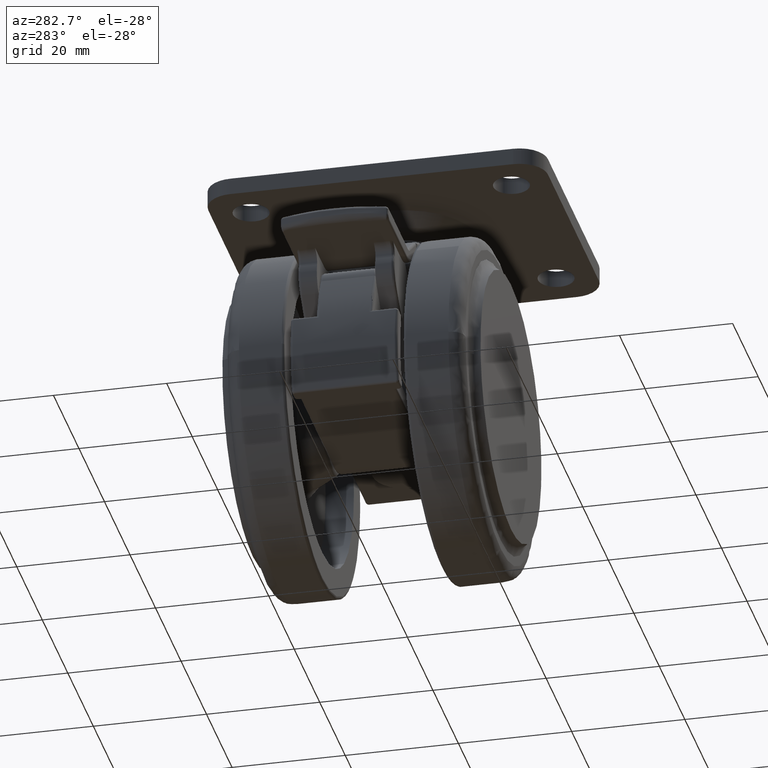
[diagram: clean part render]
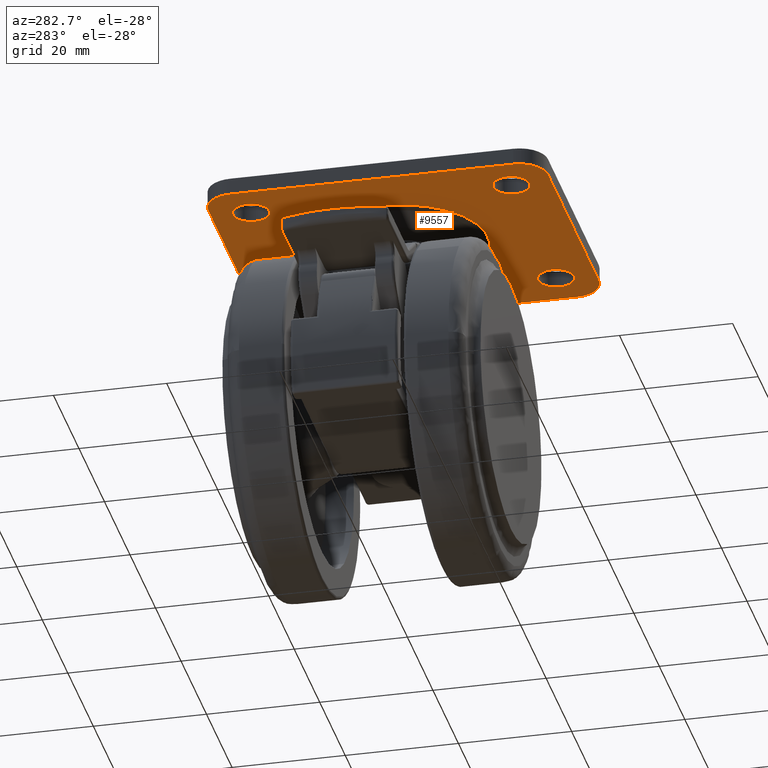
[diagram: same view with one face highlighted and labeled with its STEP entity id]
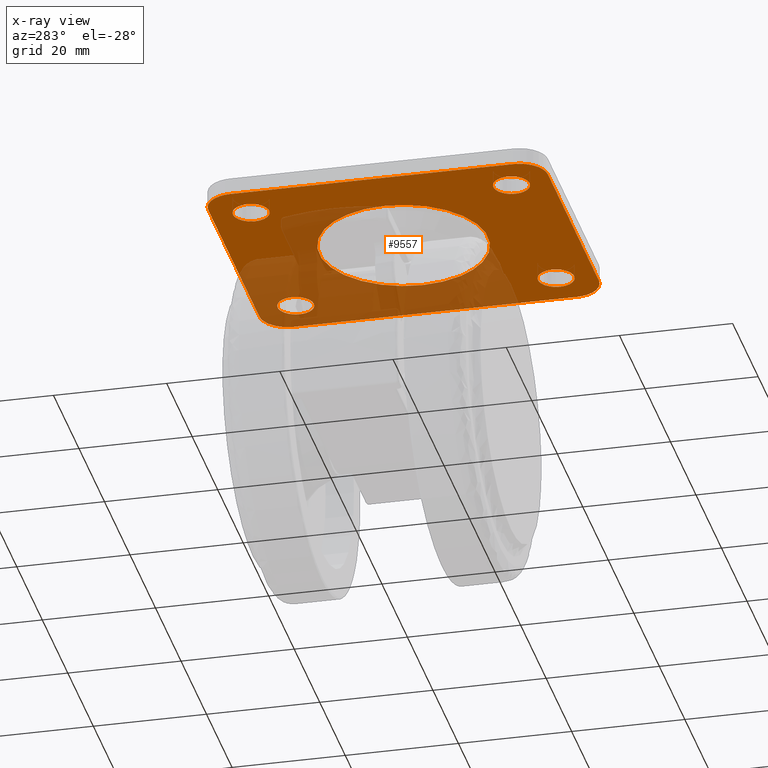
[diagram: x-ray of the same camera — body ghosted, the highlighted face saturated]
A machine part, auxiliary view. The second image highlights one B-rep face of the part: STEP entity #9557.
The next image is the same camera in x-ray: the body ghosted, the highlighted face saturated — about 40% of this face is hidden behind the body in this view.
In plain terms, the highlighted face is a freeform B-spline surface patch.
Its self-contained STEP definition (entity closure, byte-faithful):
#8462=CARTESIAN_POINT('',(-0.500001340175659,26.199999999999719,43.0));
#8463=VERTEX_POINT('',#8462);
#8464=CARTESIAN_POINT('',(-2.661888826704787,25.359287781744779,42.999999999995183));
#8465=VERTEX_POINT('',#8464);
#8466=CARTESIAN_POINT('',(-0.500001340175659,26.199999999999719,43.0));
#8467=CARTESIAN_POINT('',(-0.722533069907792,26.200033067944180,42.999999999999623));
#8468=CARTESIAN_POINT('',(-1.167576271785918,26.153393537469920,42.999999999998273));
#8469=CARTESIAN_POINT('',(-1.924491894249554,25.908533104733198,42.999999999997037));
#8470=CARTESIAN_POINT('',(-2.406801151911527,25.593335290567300,42.999999999995637));
#8471=CARTESIAN_POINT('',(-2.661888826704787,25.359287781744779,42.999999999995183));
#8472=B_SPLINE_CURVE_WITH_KNOTS('',3,(#8466,#8467,#8468,#8469,#8470,#8471),.UNSPECIFIED.,.F.,.U.,(4,1,1,4),(0.000000021626297,0.667592869155720,1.335174790091493,2.373659765460099),.UNSPECIFIED.);
#8473=EDGE_CURVE('',#8463,#8465,#8472,.T.);
#8475=CARTESIAN_POINT('',(2.700000000000000,23.0,43.0));
#8476=VERTEX_POINT('',#8475);
#8477=CARTESIAN_POINT('',(2.700000000000000,23.0,43.0));
#8478=CARTESIAN_POINT('',(2.700197356448129,23.340367719141629,42.999999999999950));
#8479=CARTESIAN_POINT('',(2.609305911978388,23.903099948025261,43.000000000000057));
#8480=CARTESIAN_POINT('',(2.290248609210453,24.611065494537080,43.000000000000007));
#8481=CARTESIAN_POINT('',(1.943499500325946,25.090745099446760,43.000000000000007));
#8482=CARTESIAN_POINT('',(1.548936924777993,25.475731308557819,43.000000000000007));
#8483=CARTESIAN_POINT('',(1.065581307982910,25.816205530728109,42.999999999999872));
#8484=CARTESIAN_POINT('',(0.376968144441672,26.116424184237172,43.000000000000327));
#8485=CARTESIAN_POINT('',(-0.185830364732169,26.200139401411690,42.999999999999567));
#8486=CARTESIAN_POINT('',(-0.500001340175659,26.199999999999719,43.0));
#8487=B_SPLINE_CURVE_WITH_KNOTS('',3,(#8477,#8478,#8479,#8480,#8481,#8482,#8483,#8484,#8485,#8486),.UNSPECIFIED.,.F.,.U.,(4,1,1,1,1,1,1,4),(0.000000105261810,1.021024323928746,1.688626347366894,2.316944332592393,2.788169922590063,3.337955434306164,4.084099322884661,5.026580540558659),.UNSPECIFIED.);
#8488=EDGE_CURVE('',#8476,#8463,#8487,.T.);
#8490=CARTESIAN_POINT('',(1.661888826704784,20.640712218255221,42.999999999995183));
#8491=VERTEX_POINT('',#8490);
#8492=CARTESIAN_POINT('',(1.661888826704784,20.640712218255221,42.999999999995183));
#8493=CARTESIAN_POINT('',(1.906523321231345,20.864628718463681,42.999999999995602));
#8494=CARTESIAN_POINT('',(2.229021226320788,21.269214182929371,42.999999999996447));
#8495=CARTESIAN_POINT('',(2.602215544455720,22.074417904331781,42.999999999998202));
#8496=CARTESIAN_POINT('',(2.700264501150707,22.626886415639060,42.999999999999297));
#8497=CARTESIAN_POINT('',(2.700000000000000,23.0,43.0));
#8498=B_SPLINE_CURVE_WITH_KNOTS('',3,(#8492,#8493,#8494,#8495,#8496,#8497),.UNSPECIFIED.,.F.,.U.,(4,1,1,4),(0.000000029411680,0.994845205847932,1.533713299763997,2.652919233643403),.UNSPECIFIED.);
#8499=EDGE_CURVE('',#8491,#8476,#8498,.T.);
#8571=CARTESIAN_POINT('',(-3.700000000000000,23.0,43.0));
#8572=VERTEX_POINT('',#8571);
#8573=CARTESIAN_POINT('',(-2.661888826704787,25.359287781744779,42.999999999995183));
#8574=CARTESIAN_POINT('',(-2.916723574239193,25.126051167002139,42.999999999995730));
#8575=CARTESIAN_POINT('',(-3.297548806396222,24.641952663394822,42.999999999996653));
#8576=CARTESIAN_POINT('',(-3.629777401124580,23.815181675624071,42.999999999998238));
#8577=CARTESIAN_POINT('',(-3.700066776113350,23.276350977815731,42.999999999999467));
#8578=CARTESIAN_POINT('',(-3.700000000000000,23.0,43.0));
#8579=B_SPLINE_CURVE_WITH_KNOTS('',3,(#8573,#8574,#8575,#8576,#8577,#8578),.UNSPECIFIED.,.F.,.U.,(4,1,1,4),(0.000000029412016,1.036306034867509,1.823877475353224,2.652919233643401),.UNSPECIFIED.);
#8580=EDGE_CURVE('',#8465,#8572,#8579,.T.);
#8618=CARTESIAN_POINT('',(-0.499998659824357,19.800000000000281,43.0));
#8619=VERTEX_POINT('',#8618);
#8620=CARTESIAN_POINT('',(-0.499998659824357,19.800000000000281,43.0));
#8621=CARTESIAN_POINT('',(-0.153810431076212,19.799812001698619,42.999999999999183));
#8622=CARTESIAN_POINT('',(0.377644553538552,19.887122866157430,42.999999999998103));
#8623=CARTESIAN_POINT('',(1.105564214175410,20.204833182617332,42.999999999996348));
#8624=CARTESIAN_POINT('',(1.470517544744739,20.465265478562479,42.999999999995687));
#8625=CARTESIAN_POINT('',(1.661888826704784,20.640712218255221,42.999999999995183));
#8626=B_SPLINE_CURVE_WITH_KNOTS('',3,(#8620,#8621,#8622,#8623,#8624,#8625),.UNSPECIFIED.,.F.,.U.,(4,1,1,4),(0.000000021626192,1.038484996956960,1.594799769515094,2.373659765460117),.UNSPECIFIED.);
#8627=EDGE_CURVE('',#8619,#8491,#8626,.T.);
#8629=CARTESIAN_POINT('',(-3.700000000000000,23.0,43.0));
#8630=CARTESIAN_POINT('',(-3.700373810515562,22.607235197999600,42.999999999999972));
#8631=CARTESIAN_POINT('',(-3.585231545821074,21.992301524540910,42.999999999999972));
#8632=CARTESIAN_POINT('',(-3.177911155453492,21.195361434929769,43.000000000000107));
#8633=CARTESIAN_POINT('',(-2.724275409945585,20.662868661291601,42.999999999999829));
#8634=CARTESIAN_POINT('',(-2.125154073519164,20.212819432662371,42.999999999999808));
#8635=CARTESIAN_POINT('',(-1.403144728492787,19.887462411572649,43.000000000000931));
#8636=CARTESIAN_POINT('',(-0.814173136209256,19.799856556608692,42.999999999998842));
#8637=CARTESIAN_POINT('',(-0.499998659824357,19.800000000000281,43.0));
#8638=B_SPLINE_CURVE_WITH_KNOTS('',3,(#8629,#8630,#8631,#8632,#8633,#8634,#8635,#8636,#8637),.UNSPECIFIED.,.F.,.U.,(4,1,1,1,1,1,4),(0.000000105269612,1.178103383195594,1.845701243827852,2.670343052054529,3.259419716830502,4.084099322886392,5.026580540558665),.UNSPECIFIED.);
#8639=EDGE_CURVE('',#8572,#8619,#8638,.T.);
#8662=CARTESIAN_POINT('',(34.499998659824342,26.199999999999719,43.0));
#8663=VERTEX_POINT('',#8662);
#8664=CARTESIAN_POINT('',(32.338111173295218,25.359287781744779,42.999999999995183));
#8665=VERTEX_POINT('',#8664);
#8666=CARTESIAN_POINT('',(34.499998659824342,26.199999999999719,43.0));
#8667=CARTESIAN_POINT('',(34.265107110792833,26.200028838467819,42.999999999999552));
#8668=CARTESIAN_POINT('',(33.758227136470140,26.144000049172281,42.999999999998217));
#8669=CARTESIAN_POINT('',(33.008316060275241,25.872181432447132,42.999999999996668));
#8670=CARTESIAN_POINT('',(32.547695031265278,25.551461849221280,42.999999999995687));
#8671=CARTESIAN_POINT('',(32.338111173295218,25.359287781744779,42.999999999995183));
#8672=B_SPLINE_CURVE_WITH_KNOTS('',3,(#8666,#8667,#8668,#8669,#8670,#8671),.UNSPECIFIED.,.F.,.U.,(4,1,1,4),(0.000000021622943,0.704682653661215,1.520624069223128,2.373659765460106),.UNSPECIFIED.);
#8673=EDGE_CURVE('',#8663,#8665,#8672,.T.);
#8675=CARTESIAN_POINT('',(37.700000000000003,23.0,43.0));
#8676=VERTEX_POINT('',#8675);
#8677=CARTESIAN_POINT('',(37.700000000000003,23.0,43.0));
#8678=CARTESIAN_POINT('',(37.700174681094801,23.327270574867981,42.999999999999993));
#8679=CARTESIAN_POINT('',(37.616910445125022,23.863849698003332,43.000000000000078));
#8680=CARTESIAN_POINT('',(37.331851490258160,24.528760849853740,43.0));
#8681=CARTESIAN_POINT('',(36.981497532674773,25.053131149943528,43.0));
#8682=CARTESIAN_POINT('',(36.553123699716053,25.481490507704180,42.999999999999929));
#8683=CARTESIAN_POINT('',(36.006917247649390,25.846469643907501,43.000000000000192));
#8684=CARTESIAN_POINT('',(35.337706455617102,26.123681607602990,42.999999999999652));
#8685=CARTESIAN_POINT('',(34.801075516358992,26.200117063722040,43.000000000000412));
#8686=CARTESIAN_POINT('',(34.499998659824342,26.199999999999719,43.0));
#8687=B_SPLINE_CURVE_WITH_KNOTS('',3,(#8677,#8678,#8679,#8680,#8681,#8682,#8683,#8684,#8685,#8686),.UNSPECIFIED.,.F.,.U.,(4,1,1,1,1,1,1,4),(0.000000105263994,0.981746555929980,1.610086518815435,2.159880174806929,2.866701118079796,3.416494656554383,4.123376205630324,5.026580540558654),.UNSPECIFIED.);
#8688=EDGE_CURVE('',#8676,#8663,#8687,.T.);
#8690=CARTESIAN_POINT('',(36.661888826704782,20.640712218255221,42.999999999995168));
#8691=VERTEX_POINT('',#8690);
#8692=CARTESIAN_POINT('',(36.661888826704782,20.640712218255221,42.999999999995168));
#8693=CARTESIAN_POINT('',(36.814711619669502,20.780716513130422,42.999999999995552));
#8694=CARTESIAN_POINT('',(37.102285828255233,21.100895414534051,42.999999999995929));
#8695=CARTESIAN_POINT('',(37.433004519852062,21.663838084560581,42.999999999997428));
#8696=CARTESIAN_POINT('',(37.649562753699321,22.309165097119038,42.999999999998472));
#8697=CARTESIAN_POINT('',(37.700044650386587,22.765102761605281,42.999999999999602));
#8698=CARTESIAN_POINT('',(37.700000000000003,23.0,43.0));
#8699=B_SPLINE_CURVE_WITH_KNOTS('',3,(#8692,#8693,#8694,#8695,#8696,#8697,#8698),.UNSPECIFIED.,.F.,.U.,(4,1,1,1,4),(0.000000029413702,0.621777047856639,1.285023365529485,1.948236649971734,2.652919233643385),.UNSPECIFIED.);
#8700=EDGE_CURVE('',#8691,#8676,#8699,.T.);
#8772=CARTESIAN_POINT('',(31.300000000000001,23.0,43.0));
#8773=VERTEX_POINT('',#8772);
#8774=CARTESIAN_POINT('',(32.338111173295218,25.359287781744779,42.999999999995183));
#8775=CARTESIAN_POINT('',(32.144512812695140,25.181967812006100,42.999999999995467));
#8776=CARTESIAN_POINT('',(31.837492360540210,24.821700326433930,42.999999999996469));
#8777=CARTESIAN_POINT('',(31.545842434179661,24.269245985904551,42.999999999997243));
#8778=CARTESIAN_POINT('',(31.351316997211359,23.677013947597938,42.999999999998899));
#8779=CARTESIAN_POINT('',(31.299932349023241,23.262535417141301,42.999999999999460));
#8780=CARTESIAN_POINT('',(31.300000000000001,23.0,43.0));
#8781=B_SPLINE_CURVE_WITH_KNOTS('',3,(#8774,#8775,#8776,#8777,#8778,#8779,#8780),.UNSPECIFIED.,.F.,.U.,(4,1,1,1,4),(0.000000029411336,0.787586766740299,1.409351723500738,1.865332496332826,2.652919233643404),.UNSPECIFIED.);
#8782=EDGE_CURVE('',#8665,#8773,#8781,.T.);
#8822=CARTESIAN_POINT('',(34.500001340175643,19.800000000000281,43.0));
#8823=VERTEX_POINT('',#8822);
#8824=CARTESIAN_POINT('',(34.500001340175643,19.800000000000281,43.0));
#8825=CARTESIAN_POINT('',(34.821446395324983,19.799856569587799,42.999999999999247));
#8826=CARTESIAN_POINT('',(35.390061772673590,19.886410847982990,42.999999999998089));
#8827=CARTESIAN_POINT('',(36.118235826269363,20.209265713208239,42.999999999996291));
#8828=CARTESIAN_POINT('',(36.497843467256267,20.490348981523962,42.999999999995609));
#8829=CARTESIAN_POINT('',(36.661888826704782,20.640712218255221,42.999999999995168));
#8830=B_SPLINE_CURVE_WITH_KNOTS('',3,(#8824,#8825,#8826,#8827,#8828,#8829),.UNSPECIFIED.,.F.,.U.,(4,1,1,4),(0.000000021619543,0.964308508286991,1.706066917920045,2.373659765460116),.UNSPECIFIED.);
#8831=EDGE_CURVE('',#8823,#8691,#8830,.T.);
#8833=CARTESIAN_POINT('',(31.300000000000001,23.0,43.0));
#8834=CARTESIAN_POINT('',(31.299924656225521,22.725106775049142,43.000000000000057));
#8835=CARTESIAN_POINT('',(31.364496789192231,22.227723796876120,42.999999999999901));
#8836=CARTESIAN_POINT('',(31.630179200490218,21.526137427277490,42.999999999999993));
#8837=CARTESIAN_POINT('',(31.978401098620381,20.998013509568342,43.000000000000441));
#8838=CARTESIAN_POINT('',(32.409269093860509,20.556526119896240,42.999999999999247));
#8839=CARTESIAN_POINT('',(32.963507469311750,20.155681119347310,43.000000000000277));
#8840=CARTESIAN_POINT('',(33.688414995282862,19.865891661054668,43.000000000000362));
#8841=CARTESIAN_POINT('',(34.251293657695037,19.799958270351489,42.999999999999517));
#8842=CARTESIAN_POINT('',(34.500001340175643,19.800000000000281,43.0));
#8843=B_SPLINE_CURVE_WITH_KNOTS('',3,(#8833,#8834,#8835,#8836,#8837,#8838,#8839,#8840,#8841,#8842),.UNSPECIFIED.,.F.,.U.,(4,1,1,1,1,1,1,4),(0.000000105262140,0.824668159904866,1.492269151751538,2.238411792356550,2.709635221843404,3.337955434305574,4.280451145650599,5.026580540558739),.UNSPECIFIED.);
#8844=EDGE_CURVE('',#8773,#8823,#8843,.T.);
#8867=CARTESIAN_POINT('',(34.499998659824342,-19.800000000000281,43.0));
#8868=VERTEX_POINT('',#8867);
#8869=CARTESIAN_POINT('',(32.338111173295218,-20.640712218255221,42.999999999995183));
#8870=VERTEX_POINT('',#8869);
#8871=CARTESIAN_POINT('',(34.499998659824342,-19.800000000000281,43.0));
#8872=CARTESIAN_POINT('',(34.153806508548563,-19.799778006963560,42.999999999999140));
#8873=CARTESIAN_POINT('',(33.597633166544050,-19.891204524248302,42.999999999998053));
#8874=CARTESIAN_POINT('',(32.872668064863518,-20.217654967760659,42.999999999996341));
#8875=CARTESIAN_POINT('',(32.511265846630543,-20.481985785661841,42.999999999995552));
#8876=CARTESIAN_POINT('',(32.338111173295218,-20.640712218255221,42.999999999995183));
#8877=B_SPLINE_CURVE_WITH_KNOTS('',3,(#8871,#8872,#8873,#8874,#8875,#8876),.UNSPECIFIED.,.F.,.U.,(4,1,1,4),(0.000000021622555,1.038484996956013,1.668977133393041,2.373659765460105),.UNSPECIFIED.);
#8878=EDGE_CURVE('',#8868,#8870,#8877,.T.);
#8880=CARTESIAN_POINT('',(37.700000000000003,-23.0,43.0));
#8881=VERTEX_POINT('',#8880);
#8882=CARTESIAN_POINT('',(37.700000000000003,-23.0,43.0));
#8883=CARTESIAN_POINT('',(37.700007469216622,-22.816743092330459,43.000000000000050));
#8884=CARTESIAN_POINT('',(37.665073735486693,-22.410951493359640,42.999999999999901));
#8885=CARTESIAN_POINT('',(37.503610961406523,-21.841127415892831,43.000000000000220));
#8886=CARTESIAN_POINT('',(37.214151917877572,-21.266067615672089,42.999999999999687));
#8887=CARTESIAN_POINT('',(36.857653413113439,-20.809244221646541,43.000000000000092));
#8888=CARTESIAN_POINT('',(36.434812472882733,-20.435408688248490,42.999999999999950));
#8889=CARTESIAN_POINT('',(35.970688653497291,-20.137469574467101,43.000000000000107));
#8890=CARTESIAN_POINT('',(35.324616615343921,-19.874445738333328,42.999999999999822));
#8891=CARTESIAN_POINT('',(34.801074171848363,-19.799893723314909,43.000000000000277));
#8892=CARTESIAN_POINT('',(34.499998659824342,-19.800000000000281,43.0));
#8893=B_SPLINE_CURVE_WITH_KNOTS('',3,(#8882,#8883,#8884,#8885,#8886,#8887,#8888,#8889,#8890,#8891,#8892),.UNSPECIFIED.,.F.,.U.,(4,1,1,1,1,1,1,1,4),(0.000000105262246,0.549776105364639,1.217374445313705,1.767162747452991,2.474052021632666,2.945238975652895,3.455771537998703,4.123376205629437,5.026580540558741),.UNSPECIFIED.);
#8894=EDGE_CURVE('',#8881,#8868,#8893,.T.);
#8896=CARTESIAN_POINT('',(36.661888826704782,-25.359287781744779,42.999999999995183));
#8897=VERTEX_POINT('',#8896);
#8898=CARTESIAN_POINT('',(36.661888826704782,-25.359287781744779,42.999999999995183));
#8899=CARTESIAN_POINT('',(36.947339537477383,-25.098086781930402,42.999999999995737));
#8900=CARTESIAN_POINT('',(37.345254889842117,-24.571405456469929,42.999999999996703));
#8901=CARTESIAN_POINT('',(37.645005667278681,-23.732292196569581,42.999999999998572));
#8902=CARTESIAN_POINT('',(37.700029555040722,-23.234891831302441,42.999999999999503));
#8903=CARTESIAN_POINT('',(37.700000000000003,-23.0,43.0));
#8904=B_SPLINE_CURVE_WITH_KNOTS('',3,(#8898,#8899,#8900,#8901,#8902,#8903),.UNSPECIFIED.,.F.,.U.,(4,1,1,4),(0.000000029411118,1.160665530532419,1.948236649971215,2.652919233643405),.UNSPECIFIED.);
#8905=EDGE_CURVE('',#8897,#8881,#8904,.T.);
#8979=CARTESIAN_POINT('',(31.300000000000001,-23.0,43.0));
#8980=VERTEX_POINT('',#8979);
#8981=CARTESIAN_POINT('',(32.338111173295218,-20.640712218255221,42.999999999995183));
#8982=CARTESIAN_POINT('',(32.134316410508653,-20.827358984639542,42.999999999995502));
#8983=CARTESIAN_POINT('',(31.775540371085519,-21.253870036107120,42.999999999996540));
#8984=CARTESIAN_POINT('',(31.395390135845311,-22.060524515075429,42.999999999998053));
#8985=CARTESIAN_POINT('',(31.299813236123939,-22.668363145625911,42.999999999999403));
#8986=CARTESIAN_POINT('',(31.300000000000001,-23.0,43.0));
#8987=B_SPLINE_CURVE_WITH_KNOTS('',3,(#8981,#8982,#8983,#8984,#8985,#8986),.UNSPECIFIED.,.F.,.U.,(4,1,1,4),(0.000000029411253,0.829041787730949,1.658074057229556,2.652919233643404),.UNSPECIFIED.);
#8988=EDGE_CURVE('',#8870,#8980,#8987,.T.);
#9027=CARTESIAN_POINT('',(34.500001340175643,-26.199999999999719,43.0));
#9028=VERTEX_POINT('',#9027);
#9029=CARTESIAN_POINT('',(34.500001340175643,-26.199999999999719,43.0));
#9030=CARTESIAN_POINT('',(34.821453077222763,-26.200158614546108,42.999999999999261));
#9031=CARTESIAN_POINT('',(35.377685423490647,-26.115443088466151,42.999999999998082));
#9032=CARTESIAN_POINT('',(36.107259101959137,-25.797046169870828,42.999999999996326));
#9033=CARTESIAN_POINT('',(36.488733341685737,-25.518011578936559,42.999999999995602));
#9034=CARTESIAN_POINT('',(36.661888826704782,-25.359287781744779,42.999999999995183));
#9035=B_SPLINE_CURVE_WITH_KNOTS('',3,(#9029,#9030,#9031,#9032,#9033,#9034),.UNSPECIFIED.,.F.,.U.,(4,1,1,4),(0.000000021624341,0.964308508289416,1.668977133393245,2.373659765460099),.UNSPECIFIED.);
#9036=EDGE_CURVE('',#9028,#8897,#9035,.T.);
#9038=CARTESIAN_POINT('',(31.300000000000001,-23.0,43.0));
#9039=CARTESIAN_POINT('',(31.299851519173249,-23.327262671226460,43.000000000000092));
#9040=CARTESIAN_POINT('',(31.387112793392081,-23.890041338117928,42.999999999999673));
#9041=CARTESIAN_POINT('',(31.680707743015400,-24.552233077105360,43.000000000000277));
#9042=CARTESIAN_POINT('',(32.059401117759890,-25.104240726421398,42.999999999999893));
#9043=CARTESIAN_POINT('',(32.572517810941271,-25.598904044626959,43.000000000000348));
#9044=CARTESIAN_POINT('',(33.206382225714933,-25.952790285184509,42.999999999999538));
#9045=CARTESIAN_POINT('',(33.858616394594982,-26.154963939366059,43.000000000000753));
#9046=CARTESIAN_POINT('',(34.264383505138959,-26.200043890147860,42.999999999999332));
#9047=CARTESIAN_POINT('',(34.500001340175643,-26.199999999999719,43.0));
#9048=B_SPLINE_CURVE_WITH_KNOTS('',3,(#9038,#9039,#9040,#9041,#9042,#9043,#9044,#9045,#9046,#9047),.UNSPECIFIED.,.F.,.U.,(4,1,1,1,1,1,1,4),(0.000000105272258,0.981746555935269,1.688626347372908,2.159880174809379,2.984529595476587,3.809206057163466,4.319733558449865,5.026580540558647),.UNSPECIFIED.);
#9049=EDGE_CURVE('',#8980,#9028,#9048,.T.);
#9072=CARTESIAN_POINT('',(-0.500001340175663,-19.800000000000281,43.0));
#9073=VERTEX_POINT('',#9072);
#9074=CARTESIAN_POINT('',(-2.661888826704788,-20.640712218255221,42.999999999995183));
#9075=VERTEX_POINT('',#9074);
#9076=CARTESIAN_POINT('',(-0.500001340175663,-19.800000000000281,43.0));
#9077=CARTESIAN_POINT('',(-0.883308918217504,-19.799687892043700,42.999999999999162));
#9078=CARTESIAN_POINT('',(-1.389957325541662,-19.892139541564259,42.999999999997947));
#9079=CARTESIAN_POINT('',(-2.114501572301515,-20.213409996619909,42.999999999996483));
#9080=CARTESIAN_POINT('',(-2.452308765950628,-20.448525745053161,42.999999999995673));
#9081=CARTESIAN_POINT('',(-2.661888826704788,-20.640712218255221,42.999999999995183));
#9082=B_SPLINE_CURVE_WITH_KNOTS('',3,(#9076,#9077,#9078,#9079,#9080,#9081),.UNSPECIFIED.,.F.,.U.,(4,1,1,4),(0.000000021624632,1.149755949486658,1.520624069222937,2.373659765460111),.UNSPECIFIED.);
#9083=EDGE_CURVE('',#9073,#9075,#9082,.T.);
#9085=CARTESIAN_POINT('',(2.700000000000000,-23.0,43.0));
#9086=VERTEX_POINT('',#9085);
#9087=CARTESIAN_POINT('',(2.700000000000000,-23.0,43.0));
#9088=CARTESIAN_POINT('',(2.700034940487767,-22.764384374916531,43.000000000000028));
#9089=CARTESIAN_POINT('',(2.644825490570664,-22.266979419667031,42.999999999999943));
#9090=CARTESIAN_POINT('',(2.369477023330763,-21.496999669647341,42.999999999999872));
#9091=CARTESIAN_POINT('',(1.912279666574547,-20.847913656477491,43.000000000000341));
#9092=CARTESIAN_POINT('',(1.354453225150402,-20.366864819230599,42.999999999999673));
#9093=CARTESIAN_POINT('',(0.862352668344885,-20.088099050410559,43.000000000000362));
#9094=CARTESIAN_POINT('',(0.246065598840696,-19.863291810031651,42.999999999999858));
#9095=CARTESIAN_POINT('',(-0.198918450568436,-19.799884823008369,42.999999999999993));
#9096=CARTESIAN_POINT('',(-0.500001340175663,-19.800000000000281,43.0));
#9097=B_SPLINE_CURVE_WITH_KNOTS('',3,(#9087,#9088,#9089,#9090,#9091,#9092,#9093,#9094,#9095,#9096),.UNSPECIFIED.,.F.,.U.,(4,1,1,1,1,1,1,4),(0.000000105262629,0.706848131072575,1.492269151753440,2.434769338651153,3.063060452475773,3.691393158362588,4.123376205629533,5.026580540558753),.UNSPECIFIED.);
#9098=EDGE_CURVE('',#9086,#9073,#9097,.T.);
#9100=CARTESIAN_POINT('',(1.661888826704784,-25.359287781744779,42.999999999995168));
#9101=VERTEX_POINT('',#9100);
#9102=CARTESIAN_POINT('',(1.661888826704784,-25.359287781744779,42.999999999995168));
#9103=CARTESIAN_POINT('',(1.947402914952974,-25.098132289165669,42.999999999995687));
#9104=CARTESIAN_POINT('',(2.345186395387946,-24.571360682648749,42.999999999996831));
#9105=CARTESIAN_POINT('',(2.645021360189349,-23.732301599672599,42.999999999998387));
#9106=CARTESIAN_POINT('',(2.700029763021584,-23.234892534368502,42.999999999999652));
#9107=CARTESIAN_POINT('',(2.700000000000000,-23.0,43.0));
#9108=B_SPLINE_CURVE_WITH_KNOTS('',3,(#9102,#9103,#9104,#9105,#9106,#9107),.UNSPECIFIED.,.F.,.U.,(4,1,1,4),(0.000000029409994,1.160665530532085,1.948236649971108,2.652919233643404),.UNSPECIFIED.);
#9109=EDGE_CURVE('',#9101,#9086,#9108,.T.);
#9182=CARTESIAN_POINT('',(-3.700000000000000,-23.0,43.0));
#9183=VERTEX_POINT('',#9182);
#9184=CARTESIAN_POINT('',(-2.661888826704788,-20.640712218255221,42.999999999995183));
#9185=CARTESIAN_POINT('',(-2.906495955898452,-20.864650389690581,42.999999999995630));
#9186=CARTESIAN_POINT('',(-3.229052566319894,-21.269193359599161,42.999999999996483));
#9187=CARTESIAN_POINT('',(-3.602167931361286,-22.074432933278342,42.999999999998082));
#9188=CARTESIAN_POINT('',(-3.700312438851188,-22.626876816525250,42.999999999999240));
#9189=CARTESIAN_POINT('',(-3.700000000000000,-23.0,43.0));
#9190=B_SPLINE_CURVE_WITH_KNOTS('',3,(#9184,#9185,#9186,#9187,#9188,#9189),.UNSPECIFIED.,.F.,.U.,(4,1,1,4),(0.000000029412929,0.994845205848957,1.533713299764545,2.652919233643402),.UNSPECIFIED.);
#9191=EDGE_CURVE('',#9075,#9183,#9190,.T.);
#9231=CARTESIAN_POINT('',(-0.499998659824357,-26.199999999999719,43.0));
#9232=VERTEX_POINT('',#9231);
#9233=CARTESIAN_POINT('',(-0.499998659824357,-26.199999999999719,43.0));
#9234=CARTESIAN_POINT('',(-0.240374457368487,-26.200056943943149,42.999999999999467));
#9235=CARTESIAN_POINT('',(0.241738843167986,-26.140999660096270,42.999999999998302));
#9236=CARTESIAN_POINT('',(0.989678559806816,-25.869945266135499,42.999999999996710));
#9237=CARTESIAN_POINT('',(1.434097022711624,-25.568199844269341,42.999999999995623));
#9238=CARTESIAN_POINT('',(1.661888826704784,-25.359287781744779,42.999999999995168));
#9239=B_SPLINE_CURVE_WITH_KNOTS('',3,(#9233,#9234,#9235,#9236,#9237,#9238),.UNSPECIFIED.,.F.,.U.,(4,1,1,4),(0.000000021625455,0.778860017544202,1.446447034461508,2.373659765460132),.UNSPECIFIED.);
#9240=EDGE_CURVE('',#9232,#9101,#9239,.T.);
#9242=CARTESIAN_POINT('',(-3.700000000000000,-23.0,43.0));
#9243=CARTESIAN_POINT('',(-3.700020802404104,-23.235610131797891,42.999999999999957));
#9244=CARTESIAN_POINT('',(-3.640538694273243,-23.772325609598980,43.000000000000028));
#9245=CARTESIAN_POINT('',(-3.397090893217534,-24.415225089156671,42.999999999999922));
#9246=CARTESIAN_POINT('',(-3.042647809862169,-24.967244519799721,43.000000000000107));
#9247=CARTESIAN_POINT('',(-2.715846011385692,-25.327837583323159,42.999999999999822));
#9248=CARTESIAN_POINT('',(-2.285799081475644,-25.672019688996379,43.000000000000213));
#9249=CARTESIAN_POINT('',(-1.816581444156776,-25.937850244016509,42.999999999999723));
#9250=CARTESIAN_POINT('',(-1.193746994165803,-26.147844561991729,43.000000000000391));
#9251=CARTESIAN_POINT('',(-0.748710686907007,-26.200051822816452,42.999999999999687));
#9252=CARTESIAN_POINT('',(-0.499998659824357,-26.199999999999719,43.0));
#9253=B_SPLINE_CURVE_WITH_KNOTS('',3,(#9242,#9243,#9244,#9245,#9246,#9247,#9248,#9249,#9250,#9251,#9252),.UNSPECIFIED.,.F.,.U.,(4,1,1,1,1,1,1,1,4),(0.000000105249792,0.706848131061279,1.610086518805337,2.042052962200287,2.670343052044601,3.063060452470390,3.691393158359084,4.280451145649152,5.026580540558747),.UNSPECIFIED.);
#9254=EDGE_CURVE('',#9183,#9232,#9253,.T.);
#9289=CARTESIAN_POINT('',(25.913127380584410,-11.949170591615060,43.0));
#9290=VERTEX_POINT('',#9289);
#9299=CARTESIAN_POINT('',(2.092736079655540,0.0,43.0));
#9300=VERTEX_POINT('',#9299);
#9301=CARTESIAN_POINT('',(25.913127380584410,-11.949170591615060,43.0));
#9302=CARTESIAN_POINT('',(24.949774898965099,-12.668125060088290,43.000000000000028));
#9303=CARTESIAN_POINT('',(23.185654978885449,-13.677450265464110,42.999999999999879));
#9304=CARTESIAN_POINT('',(20.525194332449960,-14.549946369649509,43.000000000000171));
#9305=CARTESIAN_POINT('',(18.356168412154869,-14.893437231218130,42.999999999999751));
#9306=CARTESIAN_POINT('',(16.335130227664251,-14.931521147180920,43.000000000000149));
#9307=CARTESIAN_POINT('',(14.239063569071760,-14.707659165412590,42.999999999999922));
#9308=CARTESIAN_POINT('',(11.780606046728071,-14.060040594937201,43.000000000000057));
#9309=CARTESIAN_POINT('',(9.446151002504536,-12.939079271590870,42.999999999999943));
#9310=CARTESIAN_POINT('',(7.590628437833016,-11.612882184039099,42.999999999999972));
#9311=CARTESIAN_POINT('',(6.042870472803607,-10.183386505478779,43.000000000000099));
#9312=CARTESIAN_POINT('',(4.765478563645301,-8.611808394157974,42.999999999999908));
#9313=CARTESIAN_POINT('',(3.624012521733504,-6.688581062110729,43.000000000000313));
#9314=CARTESIAN_POINT('',(2.840738324222112,-4.822495867696853,42.999999999999332));
#9315=CARTESIAN_POINT('',(2.244228067243042,-2.532815097623253,43.000000000001769));
#9316=CARTESIAN_POINT('',(2.092618755514078,-0.944464507173703,42.999999999996753));
#9317=CARTESIAN_POINT('',(2.092736079655540,0.0,43.0));
#9318=B_SPLINE_CURVE_WITH_KNOTS('',3,(#9301,#9302,#9303,#9304,#9305,#9306,#9307,#9308,#9309,#9310,#9311,#9312,#9313,#9314,#9315,#9316,#9317),.UNSPECIFIED.,.F.,.U.,(4,1,1,1,1,1,1,1,1,1,1,1,1,1,4),(0.000000042401290,3.606089103212980,6.053124498134682,8.371346248902508,10.174412499740500,12.106253275455209,14.682051345380771,17.772983626967850,19.833616846769800,21.507908755722909,24.083711572782910,25.886778731765499,28.205003932981420,30.136844627861350,32.970218306733450),.UNSPECIFIED.);
#9319=EDGE_CURVE('',#9290,#9300,#9318,.T.);
#9321=CARTESIAN_POINT('',(8.086872619415589,11.949170591615060,43.0));
#9322=VERTEX_POINT('',#9321);
#9323=CARTESIAN_POINT('',(2.092736079655540,0.0,43.0));
#9324=CARTESIAN_POINT('',(2.092606409970993,1.010812275978336,43.000000000000057));
#9325=CARTESIAN_POINT('',(2.258615147652895,2.635253549119912,42.999999999999822));
#9326=CARTESIAN_POINT('',(2.922142576382066,5.078609900291322,43.000000000000163));
#9327=CARTESIAN_POINT('',(3.789777182812361,7.033382485083145,42.999999999999680));
#9328=CARTESIAN_POINT('',(5.039530153075057,8.981867576328925,43.000000000000767));
#9329=CARTESIAN_POINT('',(6.411847354518028,10.572096621598050,42.999999999999957));
#9330=CARTESIAN_POINT('',(7.537059710837420,11.539087726569930,42.999999999999972));
#9331=CARTESIAN_POINT('',(8.086872619415589,11.949170591615060,43.0));
#9332=B_SPLINE_CURVE_WITH_KNOTS('',3,(#9323,#9324,#9325,#9326,#9327,#9328,#9329,#9330,#9331),.UNSPECIFIED.,.F.,.U.,(4,1,1,1,1,1,4),(0.000000018468020,3.032411675743772,4.873523478040383,7.581019006903064,9.422142626793505,11.804756231665399,13.862465525717420),.UNSPECIFIED.);
#9333=EDGE_CURVE('',#9300,#9322,#9332,.T.);
#9381=CARTESIAN_POINT('',(31.907263920344459,0.0,43.0));
#9382=VERTEX_POINT('',#9381);
#9383=CARTESIAN_POINT('',(8.086872619415589,11.949170591615060,43.0));
#9384=CARTESIAN_POINT('',(8.843847875574117,12.513960545947381,42.999999999999787));
#9385=CARTESIAN_POINT('',(10.355094053135939,13.431678576060969,43.000000000000249));
#9386=CARTESIAN_POINT('',(12.605115245224640,14.301165233549030,43.000000000000043));
#9387=CARTESIAN_POINT('',(14.577520192945990,14.746053253735351,42.999999999999929));
#9388=CARTESIAN_POINT('',(16.374236915682570,14.928010158297360,43.000000000000007));
#9389=CARTESIAN_POINT('',(18.051362807142411,14.901658474735481,43.000000000000007));
#9390=CARTESIAN_POINT('',(19.799441215887921,14.676639749920250,43.000000000000021));
#9391=CARTESIAN_POINT('',(21.427268434984409,14.270252642088749,43.000000000000078));
#9392=CARTESIAN_POINT('',(23.156394821347039,13.616862969041970,43.000000000000078));
#9393=CARTESIAN_POINT('',(24.681385323994778,12.818606978304530,42.999999999999943));
#9394=CARTESIAN_POINT('',(26.274440992493471,11.721252695355670,42.999999999999972));
#9395=CARTESIAN_POINT('',(27.944824523622181,10.231216072814080,43.000000000000362));
#9396=CARTESIAN_POINT('',(29.578156815915818,8.167728523694192,42.999999999999019));
#9397=CARTESIAN_POINT('',(30.771233867381611,5.872933921195282,43.000000000001378));
#9398=CARTESIAN_POINT('',(31.663744213005270,3.176641862695777,42.999999999998359));
#9399=CARTESIAN_POINT('',(31.907639702175072,1.245006342018618,43.000000000002473));
#9400=CARTESIAN_POINT('',(31.907263920344459,0.0,43.0));
#9401=B_SPLINE_CURVE_WITH_KNOTS('',3,(#9383,#9384,#9385,#9386,#9387,#9388,#9389,#9390,#9391,#9392,#9393,#9394,#9395,#9396,#9397,#9398,#9399,#9400),.UNSPECIFIED.,.F.,.U.,(4,1,1,1,1,1,1,1,1,1,1,1,1,1,1,4),(0.000000042321339,2.833352739159064,5.280373779942075,7.212230682088897,8.886505647019316,10.689576309631359,12.235052488068259,14.166922707619090,15.712408884194460,17.772983626927552,19.318482850638890,21.507908755691879,24.470082618951761,27.174678896542879,29.235326103296309,32.970218306733649),.UNSPECIFIED.);
#9402=EDGE_CURVE('',#9322,#9382,#9401,.T.);
#9404=CARTESIAN_POINT('',(31.907263920344459,0.0,43.0));
#9405=CARTESIAN_POINT('',(31.907546594621170,-1.155234062554284,42.999999999999929));
#9406=CARTESIAN_POINT('',(31.708995133665049,-2.851812154117401,43.000000000000050));
#9407=CARTESIAN_POINT('',(31.064241849633412,-5.036346623620036,43.000000000000007));
#9408=CARTESIAN_POINT('',(30.290603380671751,-6.868585282773791,42.999999999999879));
#9409=CARTESIAN_POINT('',(29.257569258155691,-8.573005904263434,43.000000000000028));
#9410=CARTESIAN_POINT('',(27.767986198165410,-10.390602455217120,43.000000000000050));
#9411=CARTESIAN_POINT('',(26.665546262475861,-11.388051164492730,42.999999999999957));
#9412=CARTESIAN_POINT('',(25.913127380584410,-11.949170591615060,43.0));
#9413=B_SPLINE_CURVE_WITH_KNOTS('',3,(#9404,#9405,#9406,#9407,#9408,#9409,#9410,#9411,#9412),.UNSPECIFIED.,.F.,.U.,(4,1,1,1,1,1,4),(0.000000018468718,3.465616395281042,5.090134087974533,6.822947961218169,9.422142626794134,11.046653753873830,13.862465525717420),.UNSPECIFIED.);
#9414=EDGE_CURVE('',#9382,#9290,#9413,.T.);
#9420=CARTESIAN_POINT('',(-10.497499903090301,32.996999883708362,43.0));
#9421=CARTESIAN_POINT('',(44.497501244194822,32.996999883708362,43.0));
#9422=CARTESIAN_POINT('',(-10.497499903090301,-32.997001493033771,43.0));
#9423=CARTESIAN_POINT('',(44.497501244194808,-32.997001493033771,43.0));
#9424=B_SPLINE_SURFACE_WITH_KNOTS('',1,1,((#9420,#9422),(#9421,#9423)),.UNSPECIFIED.,.F.,.F.,.U.,(2,2),(2,2),(0.0,54.995001147285123),(0.0,65.994001376742119),.UNSPECIFIED.);
#9425=CARTESIAN_POINT('',(42.0,25.0,43.0));
#9426=VERTEX_POINT('',#9425);
#9427=CARTESIAN_POINT('',(37.0,30.0,43.0));
#9428=VERTEX_POINT('',#9427);
#9429=CARTESIAN_POINT('',(42.0,25.0,43.0));
#9430=CARTESIAN_POINT('',(42.000042840273657,25.327246221797768,43.000000000000092));
#9431=CARTESIAN_POINT('',(41.943552604555087,25.899907863248782,42.999999999999879));
#9432=CARTESIAN_POINT('',(41.675639741140628,26.868480426584512,43.000000000000171));
#9433=CARTESIAN_POINT('',(41.196997481361571,27.805039848549519,42.999999999999808));
#9434=CARTESIAN_POINT('',(40.471106379557959,28.646418548415710,43.000000000000313));
#9435=CARTESIAN_POINT('',(39.641344774390859,29.285826610852101,42.999999999999808));
#9436=CARTESIAN_POINT('',(38.790671661104831,29.701028122785200,42.999999999999687));
#9437=CARTESIAN_POINT('',(37.879465697306173,29.947115346416179,43.000000000000853));
#9438=CARTESIAN_POINT('',(37.306796230627867,30.000033104201648,42.999999999998472));
#9439=CARTESIAN_POINT('',(37.0,30.0,43.0));
#9440=B_SPLINE_CURVE_WITH_KNOTS('',3,(#9429,#9430,#9431,#9432,#9433,#9434,#9435,#9436,#9437,#9438,#9439),.UNSPECIFIED.,.F.,.U.,(4,1,1,1,1,1,1,1,4),(0.000000087774800,0.981735940052765,1.718068028822665,3.006627004893004,4.111073877464365,5.031485854782374,6.135964031420839,6.933644280637259,7.854030914379411),.UNSPECIFIED.);
#9441=EDGE_CURVE('',#9426,#9428,#9440,.T.);
#9442=ORIENTED_EDGE('',*,*,#9441,.F.);
#9443=CARTESIAN_POINT('',(42.0,-24.999999999996849,43.0));
#9444=VERTEX_POINT('',#9443);
#9445=CARTESIAN_POINT('',(42.0,-24.999999999996849,43.0));
#9446=CARTESIAN_POINT('',(42.0,25.0,43.0));
#9447=QUASI_UNIFORM_CURVE('',1,(#9445,#9446),.UNSPECIFIED.,.F.,.U.);
#9448=EDGE_CURVE('',#9444,#9426,#9447,.T.);
#9449=ORIENTED_EDGE('',*,*,#9448,.F.);
#9450=CARTESIAN_POINT('',(37.0,-30.0,43.0));
#9451=VERTEX_POINT('',#9450);
#9452=CARTESIAN_POINT('',(37.0,-30.0,43.0));
#9453=CARTESIAN_POINT('',(37.327247429673612,-30.000045919563480,42.999999999999957));
#9454=CARTESIAN_POINT('',(37.899906903154822,-29.943551264110461,43.000000000000050));
#9455=CARTESIAN_POINT('',(38.868480894309592,-29.675632276637579,42.999999999999957));
#9456=CARTESIAN_POINT('',(39.768299006889741,-29.215769458984848,43.000000000000121));
#9457=CARTESIAN_POINT('',(40.570246070176680,-28.540842539046981,42.999999999999837));
#9458=CARTESIAN_POINT('',(41.234520603417842,-27.731577831881161,43.000000000000043));
#9459=CARTESIAN_POINT('',(41.685019441620277,-26.850122437104250,42.999999999999837));
#9460=CARTESIAN_POINT('',(41.947108912277017,-25.879461945652491,43.000000000000142));
#9461=CARTESIAN_POINT('',(42.000033169359199,-25.306796081564020,42.999999999999943));
#9462=CARTESIAN_POINT('',(42.0,-24.999999999996849,43.0));
#9463=B_SPLINE_CURVE_WITH_KNOTS('',3,(#9452,#9453,#9454,#9455,#9456,#9457,#9458,#9459,#9460,#9461,#9462),.UNSPECIFIED.,.F.,.U.,(4,1,1,1,1,1,1,1,4),(0.000000087781931,0.981735940057668,1.718068028826062,3.006627004895464,3.988348927332364,4.847402132113993,6.135964031422971,6.933644280639070,7.854030914381169),.UNSPECIFIED.);
#9464=EDGE_CURVE('',#9451,#9444,#9463,.T.);
#9465=ORIENTED_EDGE('',*,*,#9464,.F.);
#9466=CARTESIAN_POINT('',(-2.999999999995455,-30.0,43.0));
#9467=VERTEX_POINT('',#9466);
#9468=CARTESIAN_POINT('',(-2.999999999995455,-30.0,43.0));
#9469=CARTESIAN_POINT('',(37.0,-30.0,43.0));
#9470=QUASI_UNIFORM_CURVE('',1,(#9468,#9469),.UNSPECIFIED.,.F.,.U.);
#9471=EDGE_CURVE('',#9467,#9451,#9470,.T.);
#9472=ORIENTED_EDGE('',*,*,#9471,.F.);
#9473=CARTESIAN_POINT('',(-8.0,-25.0,43.0));
#9474=VERTEX_POINT('',#9473);
#9475=CARTESIAN_POINT('',(-8.0,-25.0,43.0));
#9476=CARTESIAN_POINT('',(-8.000027439652811,-25.327241160473719,43.000000000000092));
#9477=CARTESIAN_POINT('',(-7.925516762281461,-26.084021968112360,42.999999999999758));
#9478=CARTESIAN_POINT('',(-7.576348454968881,-27.119765623131880,43.000000000000497));
#9479=CARTESIAN_POINT('',(-7.015597185697963,-28.029564611010159,42.999999999999169));
#9480=CARTESIAN_POINT('',(-6.293530646946488,-28.816602330312818,43.000000000000853));
#9481=CARTESIAN_POINT('',(-5.497685677211882,-29.369877251350928,42.999999999999829));
#9482=CARTESIAN_POINT('',(-4.651977597760729,-29.738416079302290,42.999999999999872));
#9483=CARTESIAN_POINT('',(-3.879469404211653,-29.947123898611189,43.000000000001208));
#9484=CARTESIAN_POINT('',(-3.306796250519755,-30.000033158317219,42.999999999998337));
#9485=CARTESIAN_POINT('',(-2.999999999995455,-30.0,43.0));
#9486=B_SPLINE_CURVE_WITH_KNOTS('',3,(#9475,#9476,#9477,#9478,#9479,#9480,#9481,#9482,#9483,#9484,#9485),.UNSPECIFIED.,.F.,.U.,(4,1,1,1,1,1,1,1,4),(0.000000087775690,0.981735940053247,2.270311772791249,3.252063460938090,4.172446461629184,5.461004878953192,6.135964031423002,6.933644280639488,7.854030914381973),.UNSPECIFIED.);
#9487=EDGE_CURVE('',#9474,#9467,#9486,.T.);
#9488=ORIENTED_EDGE('',*,*,#9487,.F.);
#9489=CARTESIAN_POINT('',(-8.0,25.0,43.0));
#9490=VERTEX_POINT('',#9489);
#9491=CARTESIAN_POINT('',(-8.0,25.0,43.0));
#9492=CARTESIAN_POINT('',(-8.0,-25.0,43.0));
#9493=QUASI_UNIFORM_CURVE('',1,(#9491,#9492),.UNSPECIFIED.,.F.,.U.);
#9494=EDGE_CURVE('',#9490,#9474,#9493,.T.);
#9495=ORIENTED_EDGE('',*,*,#9494,.F.);
#9496=CARTESIAN_POINT('',(-3.0,30.0,43.0));
#9497=VERTEX_POINT('',#9496);
#9498=CARTESIAN_POINT('',(-3.0,30.0,43.0));
#9499=CARTESIAN_POINT('',(-3.327246152996217,30.000039375091990,42.999999999999993));
#9500=CARTESIAN_POINT('',(-4.002182953693488,29.933515339742829,43.000000000000071));
#9501=CARTESIAN_POINT('',(-4.964667288545503,29.635136912981690,43.000000000000007));
#9502=CARTESIAN_POINT('',(-5.702847534776605,29.228788155328839,43.000000000000043));
#9503=CARTESIAN_POINT('',(-6.322104195776901,28.757584021063629,43.000000000000149));
#9504=CARTESIAN_POINT('',(-6.946433345354654,28.133497123720961,42.999999999999361));
#9505=CARTESIAN_POINT('',(-7.469929773596608,27.317767206208860,43.000000000001258));
#9506=CARTESIAN_POINT('',(-7.890671299099980,26.227071972744980,42.999999999998991));
#9507=CARTESIAN_POINT('',(-8.000204316330038,25.490899747121070,43.000000000000597));
#9508=CARTESIAN_POINT('',(-8.0,25.0,43.0));
#9509=B_SPLINE_CURVE_WITH_KNOTS('',3,(#9498,#9499,#9500,#9501,#9502,#9503,#9504,#9505,#9506,#9507,#9508),.UNSPECIFIED.,.F.,.U.,(4,1,1,1,1,1,1,1,4),(0.000000087761438,0.981735940041516,2.024868445173341,3.006627004886681,3.497511138634877,4.356520945742375,5.645082381328614,6.381408060201391,7.854030914379452),.UNSPECIFIED.);
#9510=EDGE_CURVE('',#9497,#9490,#9509,.T.);
#9511=ORIENTED_EDGE('',*,*,#9510,.F.);
#9512=CARTESIAN_POINT('',(37.0,30.0,43.0));
#9513=CARTESIAN_POINT('',(-3.0,30.0,43.0));
#9514=QUASI_UNIFORM_CURVE('',1,(#9512,#9513),.UNSPECIFIED.,.F.,.U.);
#9515=EDGE_CURVE('',#9428,#9497,#9514,.T.);
#9516=ORIENTED_EDGE('',*,*,#9515,.F.);
#9517=EDGE_LOOP('',(#9442,#9449,#9465,#9472,#9488,#9495,#9511,#9516));
#9518=FACE_OUTER_BOUND('',#9517,.T.);
#9519=ORIENTED_EDGE('',*,*,#9333,.F.);
#9520=ORIENTED_EDGE('',*,*,#9319,.F.);
#9521=ORIENTED_EDGE('',*,*,#9414,.F.);
#9522=ORIENTED_EDGE('',*,*,#9402,.F.);
#9523=EDGE_LOOP('',(#9519,#9520,#9521,#9522));
#9524=FACE_BOUND('',#9523,.T.);
#9525=ORIENTED_EDGE('',*,*,#9254,.T.);
#9526=ORIENTED_EDGE('',*,*,#9240,.T.);
#9527=ORIENTED_EDGE('',*,*,#9109,.T.);
#9528=ORIENTED_EDGE('',*,*,#9098,.T.);
#9529=ORIENTED_EDGE('',*,*,#9083,.T.);
#9530=ORIENTED_EDGE('',*,*,#9191,.T.);
#9531=EDGE_LOOP('',(#9525,#9526,#9527,#9528,#9529,#9530));
#9532=FACE_BOUND('',#9531,.T.);
#9533=ORIENTED_EDGE('',*,*,#9049,.T.);
#9534=ORIENTED_EDGE('',*,*,#9036,.T.);
#9535=ORIENTED_EDGE('',*,*,#8905,.T.);
#9536=ORIENTED_EDGE('',*,*,#8894,.T.);
#9537=ORIENTED_EDGE('',*,*,#8878,.T.);
#9538=ORIENTED_EDGE('',*,*,#8988,.T.);
#9539=EDGE_LOOP('',(#9533,#9534,#9535,#9536,#9537,#9538));
#9540=FACE_BOUND('',#9539,.T.);
#9541=ORIENTED_EDGE('',*,*,#8844,.T.);
#9542=ORIENTED_EDGE('',*,*,#8831,.T.);
#9543=ORIENTED_EDGE('',*,*,#8700,.T.);
#9544=ORIENTED_EDGE('',*,*,#8688,.T.);
#9545=ORIENTED_EDGE('',*,*,#8673,.T.);
#9546=ORIENTED_EDGE('',*,*,#8782,.T.);
#9547=EDGE_LOOP('',(#9541,#9542,#9543,#9544,#9545,#9546));
#9548=FACE_BOUND('',#9547,.T.);
#9549=ORIENTED_EDGE('',*,*,#8639,.T.);
#9550=ORIENTED_EDGE('',*,*,#8627,.T.);
#9551=ORIENTED_EDGE('',*,*,#8499,.T.);
#9552=ORIENTED_EDGE('',*,*,#8488,.T.);
#9553=ORIENTED_EDGE('',*,*,#8473,.T.);
#9554=ORIENTED_EDGE('',*,*,#8580,.T.);
#9555=EDGE_LOOP('',(#9549,#9550,#9551,#9552,#9553,#9554));
#9556=FACE_BOUND('',#9555,.T.);
#9557=ADVANCED_FACE('',(#9518,#9524,#9532,#9540,#9548,#9556),#9424,.T.);